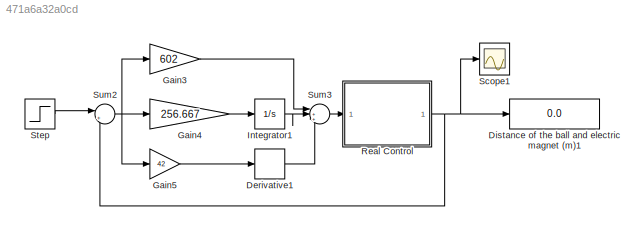
MODEL slx_471a6a32a0cd
KIND model
BLOCK [Derivative] Derivative1
BLOCK [Display] Distance of the ball and electric magnet   (m)1
  Decimation = 50
  Ports = [1]
BLOCK [Gain] Gain3
  Gain = 602
  OutDataTypeStr = Inherit: Inherit via internal rule
  ParamDataTypeStr = Inherit: Inherit via internal rule
  SaturateOnIntegerOverflow = off
BLOCK [Gain] Gain4
  Gain = 256.667
  OutDataTypeStr = Inherit: Inherit via internal rule
  ParamDataTypeStr = Inherit: Inherit via internal rule
  SaturateOnIntegerOverflow = off
BLOCK [Gain] Gain5
  Gain = 42
  OutDataTypeStr = Inherit: Inherit via internal rule
  ParamDataTypeStr = Inherit: Inherit via internal rule
  SaturateOnIntegerOverflow = off
BLOCK [Integrator] Integrator1
  Ports = [1, 1]
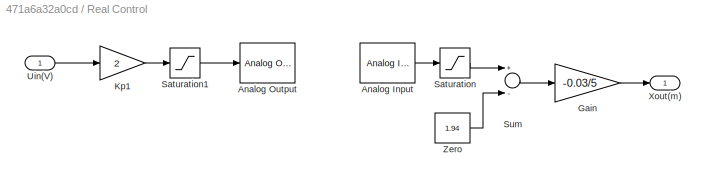
BLOCK [SubSystem] Real Control
  Ports = [1, 1]
  RequestExecContextInheritance = off
BLOCK [Reference] Real Control/Analog Input  REF=rtwinlib/Analog Input
  AttributesFormatString = Advantech\nPCI-1711 [auto]
  Channels = 1
  DataType = 1
  DrvAddress = 4294967295
  DrvName = Advantech/PCI-1711
  DrvOptions = zeros(1,0)
  MaxMissedTicks = 10
  Ports = [0, 1]
  RangeMode = 1
  SampleTime = 0.001
  ShowMissedTicks = off
  SourceBlock = rtwinlib/Analog Input
  SourceType = RTWin Analog Input
  VoltRange = 2
  YieldWhenWaiting = off
BLOCK [Reference] Real Control/Analog Output  REF=rtwinlib/Analog Output
  AttributesFormatString = Advantech\nPCI-1711 [auto]
  Channels = 1
  DrvAddress = 4294967295
  DrvName = Advantech/PCI-1711
  DrvOptions = zeros(1,0)
  FinalValue = -10
  InitialValue = -10
  MaxMissedTicks = 10
  Ports = [1]
  RangeMode = 1
  SampleTime = 0.001
  ShowMissedTicks = off
  SourceBlock = rtwinlib/Analog Output
  SourceType = RTWin Analog Output
  VoltRange = 2
  YieldWhenWaiting = off
BLOCK [Gain] Real Control/Gain
  Gain = -0.03/5
BLOCK [Gain] Real Control/Kp1
  Gain = 2
BLOCK [Saturate] Real Control/Saturation
  InputPortMap = u0
  LowerLimit = 0
  Ports = [1, 1]
  UpperLimit = 5
BLOCK [Saturate] Real Control/Saturation1
  InputPortMap = u0
  LowerLimit = 0
  Ports = [1, 1]
  UpperLimit = 10
BLOCK [Sum] Real Control/Sum
  InputSameDT = off
  Inputs = +-
  Ports = [2, 1]
BLOCK [Inport] Real Control/Uin(V)
  IconDisplay = Port number
BLOCK [Outport] Real Control/Xout(m)
  IconDisplay = Port number
BLOCK [Constant] Real Control/Zero
  SampleTime = -1
  Value = 1.94
BLOCK [Scope] Scope1
  Floating = off
  NumInputPorts = 1
  Ports = [1]
  SaveName = ScopeData1
  ShowLegends = off
BLOCK [Step] Step
  After = -0.01
  SampleTime = 0
BLOCK [Sum] Sum2
  IconShape = round
  InputSameDT = off
  Inputs = |+-
  OutDataTypeStr = Inherit: Inherit via internal rule
  Ports = [2, 1]
  SaturateOnIntegerOverflow = off
BLOCK [Sum] Sum3
  IconShape = round
  InputSameDT = off
  Inputs = |+++
  OutDataTypeStr = Inherit: Inherit via internal rule
  Ports = [3, 1]
  SaturateOnIntegerOverflow = off
LINE Derivative1:1 -> Sum3:3
LINE Gain3:1 -> Sum3:1
LINE Gain4:1 -> Integrator1:1
LINE Gain5:1 -> Derivative1:1
LINE Integrator1:1 -> Sum3:2
LINE Real Control/Analog Input:1 -> Real Control/Saturation:1
LINE Real Control/Gain:1 -> Real Control/Xout(m):1
LINE Real Control/Kp1:1 -> Real Control/Saturation1:1
LINE Real Control/Saturation1:1 -> Real Control/Analog Output:1
LINE Real Control/Saturation:1 -> Real Control/Sum:1
LINE Real Control/Sum:1 -> Real Control/Gain:1
LINE Real Control/Uin(V):1 -> Real Control/Kp1:1
LINE Real Control/Zero:1 -> Real Control/Sum:2
NET Real Control:1 -> Distance of the ball and electric magnet   (m)1:1, Scope1:1, Sum2:2
LINE Step:1 -> Sum2:1
NET Sum2:1 -> Gain3:1, Gain4:1, Gain5:1
LINE Sum3:1 -> Real Control:1
note: NET lines group one-source signal fan-out (src -> all destinations, sorted); 1:1 wires keep LINE
